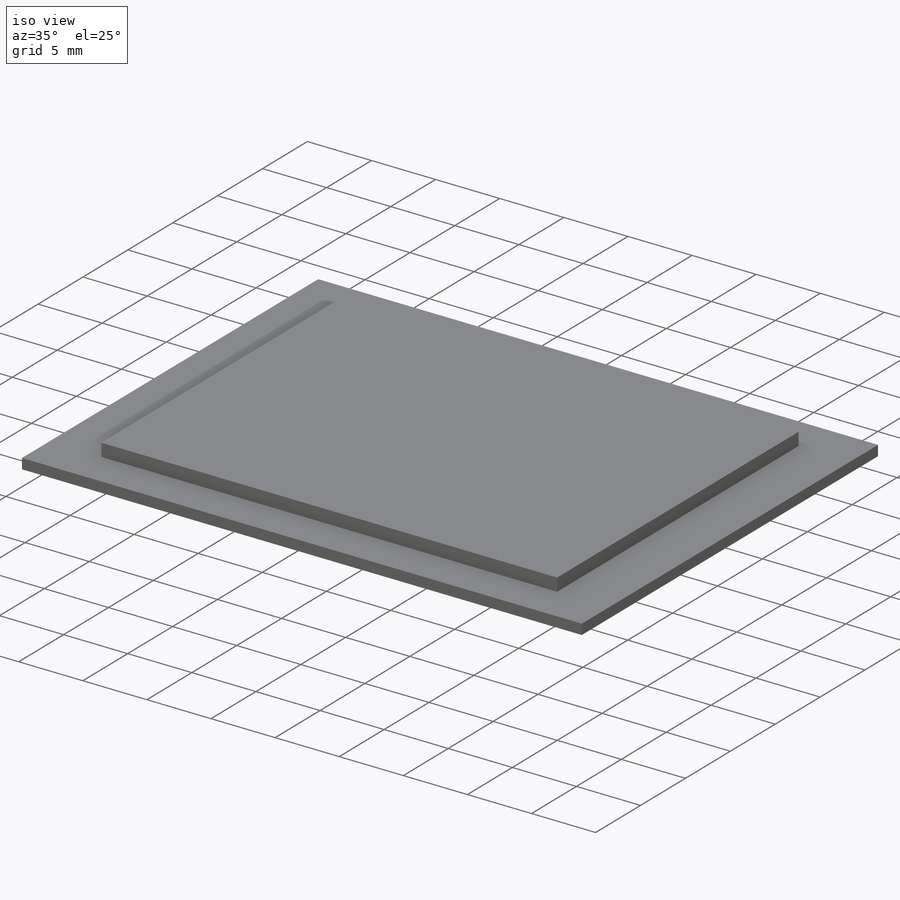
[diagram: iso view]
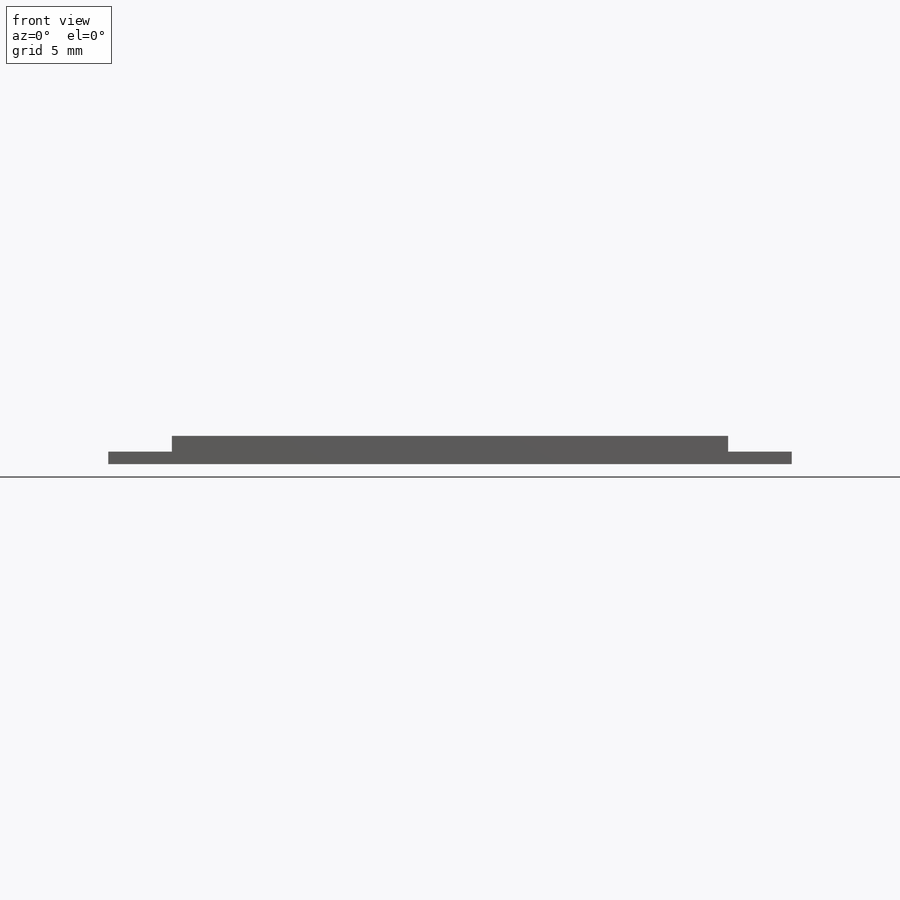
[diagram: front view]
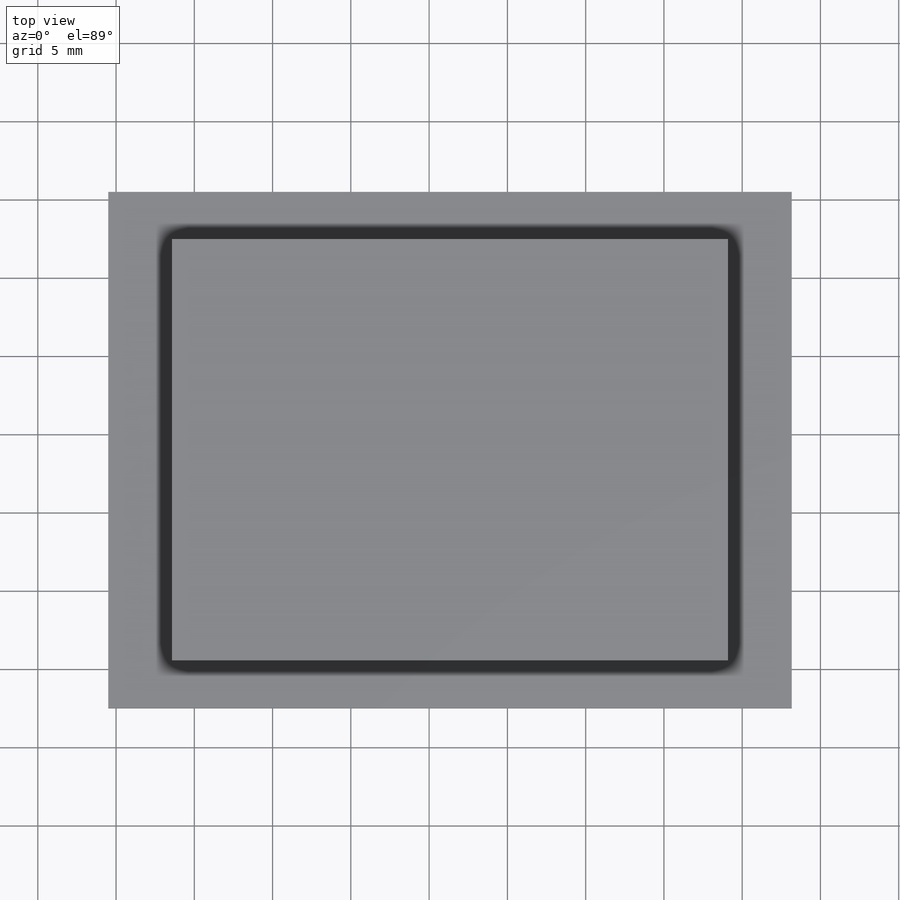
[diagram: top view]
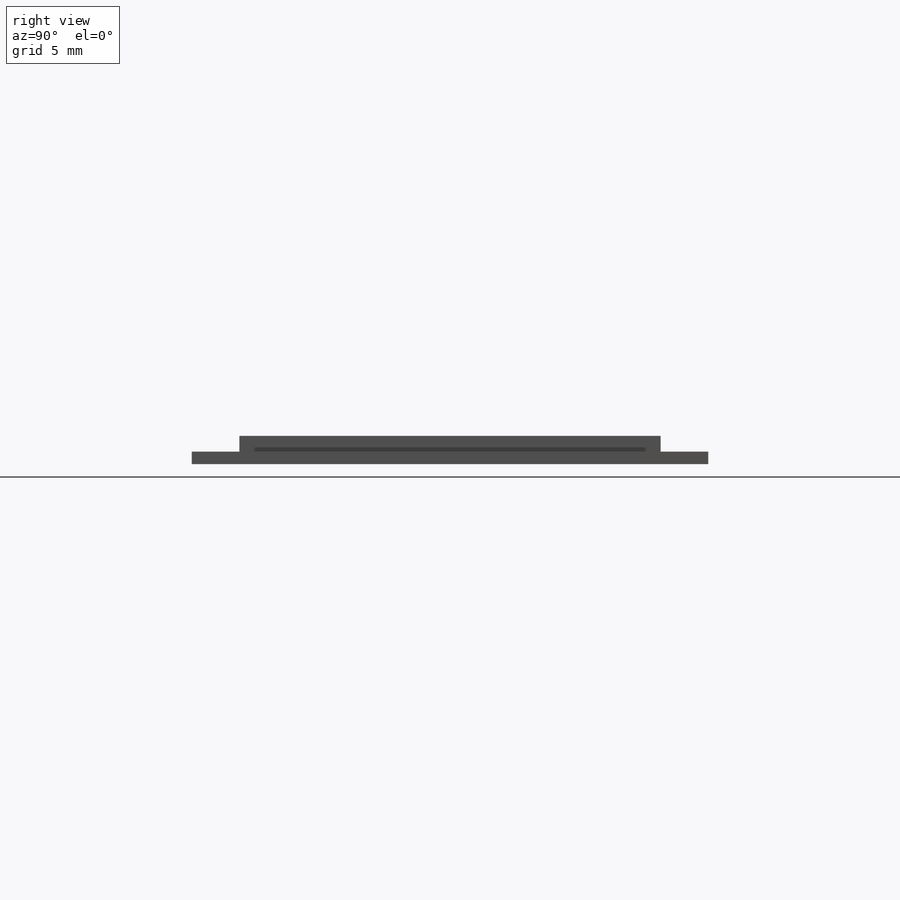
[diagram: right view]
SOLIDWORKS PART (.sldprt)
format: sldprt  version: not decoded by parser v0  size: 172,544 bytes
history: native  units: mm
features: sketch x2, extrude x2, material x1, shell x1 (+12 scaffold rows collapsed)
feature tree (18):
  scaffold x12  (default folders/planes/origin — collapsed)
  material  "Material <not specified>"
  sketch  "Sketch1"  dims[D1=42.667mm D2=32.0mm]
  extrude  "Extrude1"  Depth=0.3mm
  sketch  "Sketch2"  dims[D1=34.544mm D2=25.908mm D3=34.544mm]
  extrude  "Extrude2"  Depth=1mm
  shell  "Shell1"  Thickness=0.5mm
decode coverage: 5 of 5 modeling features carry decoded parameters
note: suppression state not decoded; provenance and decode notes live in map.json
